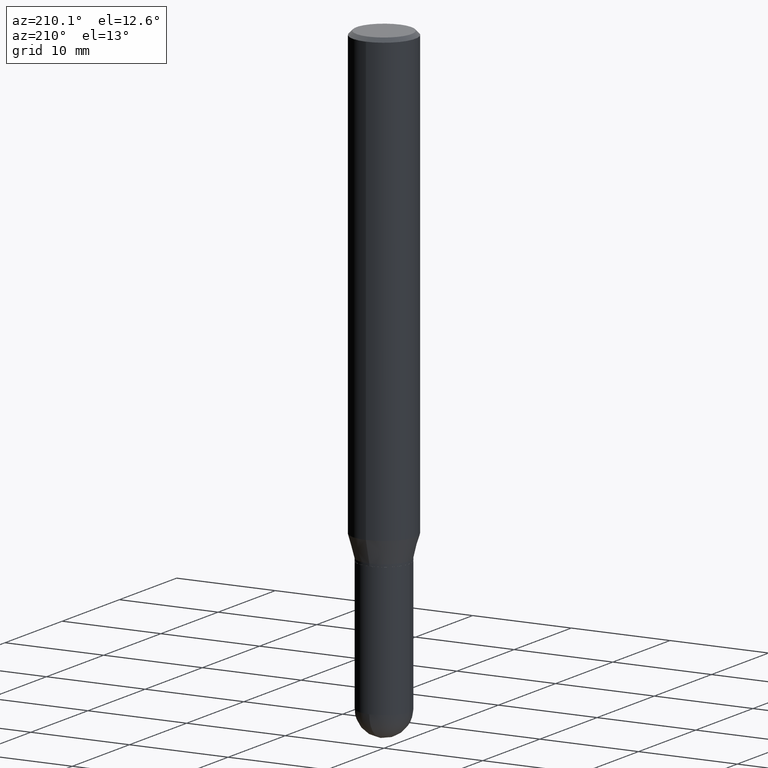
[diagram: clean part render]
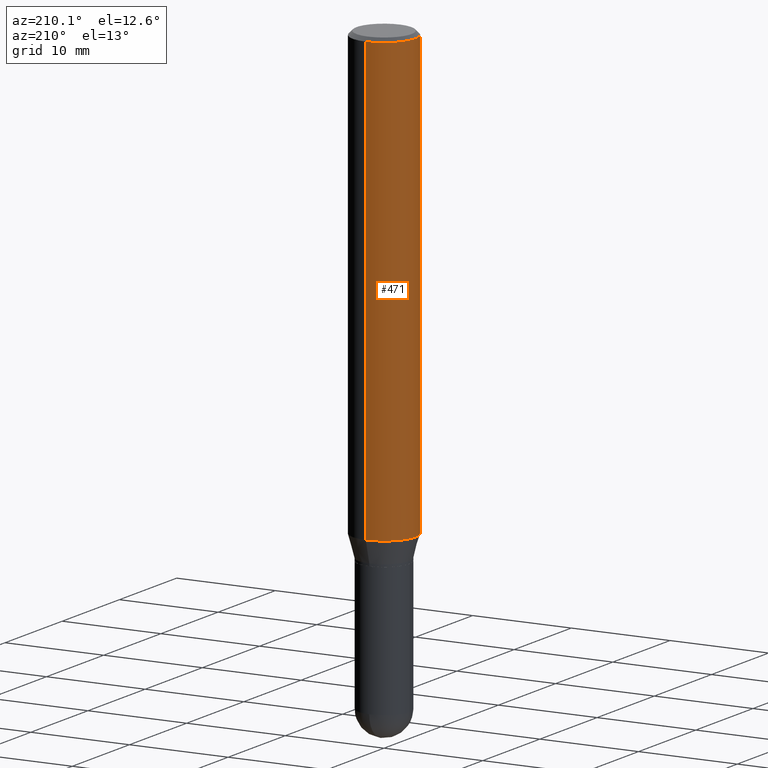
[diagram: same view with one face highlighted and labeled with its STEP entity id]
A machine part, auxiliary view. The second image highlights one B-rep face of the part: STEP entity #471.
In plain terms, the highlighted cylindrical surface (edge-blend (fillet) strip) has radius 3.175 mm, axis along (-0, 0, 1).
Its self-contained STEP definition (entity closure, byte-faithful):
#14 = CARTESIAN_POINT ( 'NONE',  ( -8.728703347107832402E-16, -0.1250000000000000000, 4.364323517735584479E-16 ) ) ;
#45 = VERTEX_POINT ( 'NONE', #238 ) ;
#49 = DIRECTION ( 'NONE',  ( -2.445484535067431049E-29, 3.491458814188467583E-15, 1.000000000000000000 ) ) ;
#58 = DIRECTION ( 'NONE',  ( -6.982962677686265922E-15, -1.000000000000000000, 3.483106191921935554E-15 ) ) ;
#79 = EDGE_CURVE ( 'NONE', #278, #45, #174, .T. ) ;
#108 = CARTESIAN_POINT ( 'NONE',  ( 8.881784197001684225E-16, 0.1249999999999937828, -1.777483408562510636 ) ) ;
#111 = VERTEX_POINT ( 'NONE', #183 ) ;
#114 = CARTESIAN_POINT ( 'NONE',  ( 8.881784197001688169E-16, 0.1249999999999999445, -0.01500000000000043486 ) ) ;
#125 = EDGE_CURVE ( 'NONE', #355, #111, #358, .T. ) ;
#137 = CARTESIAN_POINT ( 'NONE',  ( 4.346808186978562239E-29, -6.206010113899336320E-15, -1.777483408562509970 ) ) ;
#146 = DIRECTION ( 'NONE',  ( -6.982962677686265922E-15, -1.000000000000000000, 3.491458814188467583E-15 ) ) ;
#151 = DIRECTION ( 'NONE',  ( -2.445484535067430768E-29, 3.491458814188467188E-15, 1.000000000000000000 ) ) ;
#174 = CIRCLE ( 'NONE', #249, 0.1250000000000000000 ) ;
#183 = CARTESIAN_POINT ( 'NONE',  ( -8.728703347107828458E-16, -0.1250000000000000555, -0.01499999999999956403 ) ) ;
#190 = CYLINDRICAL_SURFACE ( 'NONE', #430, 0.1250000000000000000 ) ;
#238 = CARTESIAN_POINT ( 'NONE',  ( -8.728703347107399515E-16, -0.1250000000000062172, -1.777483408562509526 ) ) ;
#249 = AXIS2_PLACEMENT_3D ( 'NONE', #137, #49, #477 ) ;
#256 = LINE ( 'NONE', #14, #289 ) ;
#265 = VECTOR ( 'NONE', #151, 39.37007874015748143 ) ;
#266 = FACE_OUTER_BOUND ( 'NONE', #309, .T. ) ;
#278 = VERTEX_POINT ( 'NONE', #108 ) ;
#289 = VECTOR ( 'NONE', #333, 39.37007874015748143 ) ;
#290 = DIRECTION ( 'NONE',  ( -2.445484535067431049E-29, 3.491458814188467583E-15, 1.000000000000000000 ) ) ;
#300 = DIRECTION ( 'NONE',  ( -2.445484535067431049E-29, 3.491458814188467583E-15, 1.000000000000000000 ) ) ;
#309 = EDGE_LOOP ( 'NONE', ( #470, #317, #414, #451 ) ) ;
#317 = ORIENTED_EDGE ( 'NONE', *, *, #79, .T. ) ;
#333 = DIRECTION ( 'NONE',  ( -2.445484535067430768E-29, 3.491458814188467188E-15, 1.000000000000000000 ) ) ;
#335 = EDGE_CURVE ( 'NONE', #278, #355, #494, .T. ) ;
#355 = VERTEX_POINT ( 'NONE', #114 ) ;
#358 = CIRCLE ( 'NONE', #436, 0.1250000000000000000 ) ;
#380 = CARTESIAN_POINT ( 'NONE',  ( 8.881784197001251337E-16, 0.1250000000000000000, -4.364323517735584479E-16 ) ) ;
#381 = CARTESIAN_POINT ( 'NONE',  ( 0.000000000000000000, 0.000000000000000000, 0.000000000000000000 ) ) ;
#402 = CARTESIAN_POINT ( 'NONE',  ( 3.668226802601146923E-31, -5.237188221282701522E-17, -0.01499999999999999944 ) ) ;
#403 = EDGE_CURVE ( 'NONE', #45, #111, #256, .T. ) ;
#414 = ORIENTED_EDGE ( 'NONE', *, *, #403, .T. ) ;
#430 = AXIS2_PLACEMENT_3D ( 'NONE', #381, #300, #146 ) ;
#436 = AXIS2_PLACEMENT_3D ( 'NONE', #402, #290, #58 ) ;
#451 = ORIENTED_EDGE ( 'NONE', *, *, #125, .F. ) ;
#470 = ORIENTED_EDGE ( 'NONE', *, *, #335, .F. ) ;
#471 = ADVANCED_FACE ( 'NONE', ( #266 ), #190, .T. ) ;
#477 = DIRECTION ( 'NONE',  ( -6.982962677686265922E-15, -1.000000000000000000, 4.370956789862821150E-15 ) ) ;
#494 = LINE ( 'NONE', #380, #265 ) ;